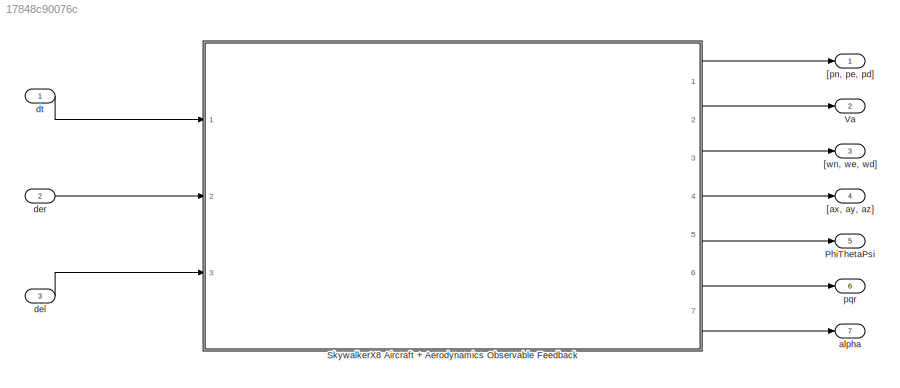
MODEL slx_17848c90076c
KIND model
CONFIG AbsTol = auto
CONFIG EnableMultiTasking = off
CONFIG FixedStep = 0.01
CONFIG MaxStep = auto
CONFIG MinStep = auto
CONFIG RelTol = 1e-3
CONFIG SampleTimeConstraint = Unconstrained
CONFIG Solver = FixedStepAuto
CONFIG SolverName = FixedStepAuto
CONFIG StartTime = 0.0
CONFIG StopTime = 10.0
BLOCK [Outport] PhiThetaPsi
  IconDisplay = Port number
  Port = 5
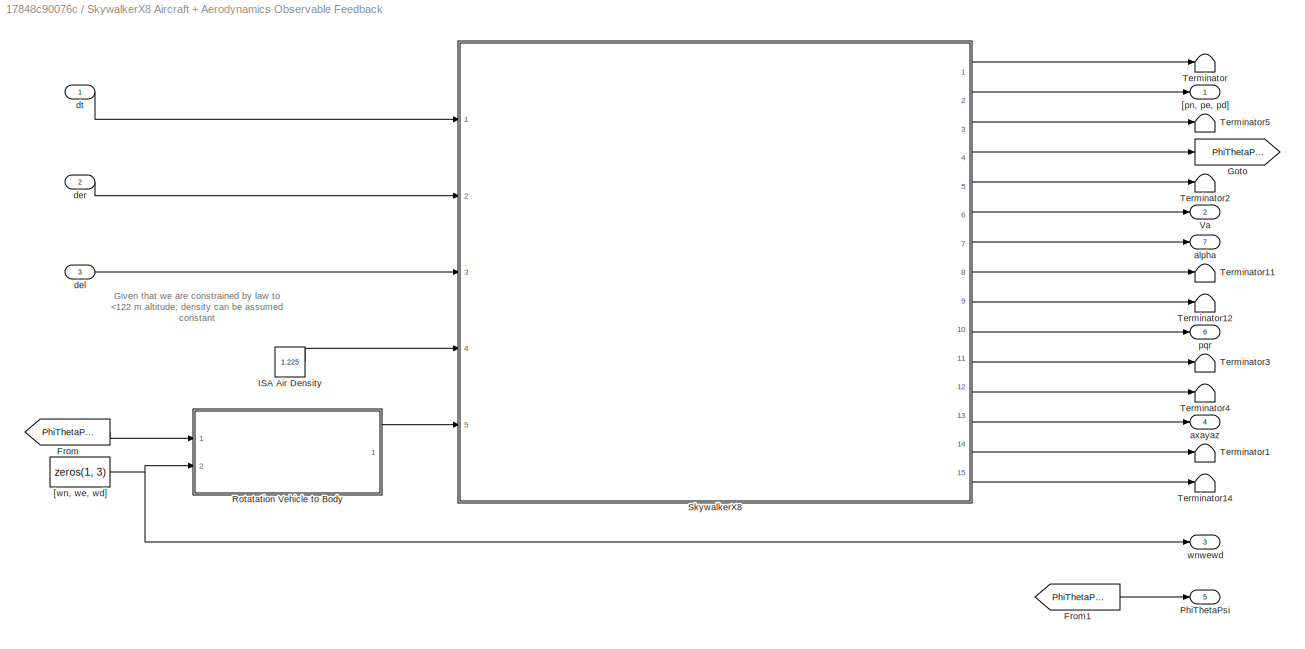
BLOCK [SubSystem] SkywalkerX8 Aircraft + Aerodynamics Observable Feedback
  Ports = [3, 7]
  RequestExecContextInheritance = off
BLOCK [From] SkywalkerX8 Aircraft + Aerodynamics Observable Feedback/From
  GotoTag = PhiThetaPsi
BLOCK [From] SkywalkerX8 Aircraft + Aerodynamics Observable Feedback/From1
  GotoTag = PhiThetaPsi
BLOCK [Goto] SkywalkerX8 Aircraft + Aerodynamics Observable Feedback/Goto
  GotoTag = PhiThetaPsi
BLOCK [Constant] SkywalkerX8 Aircraft + Aerodynamics Observable Feedback/ISA Air Density
  Value = 1.225
BLOCK [Outport] SkywalkerX8 Aircraft + Aerodynamics Observable Feedback/PhiThetaPsi
  IconDisplay = Port number
  Port = 5
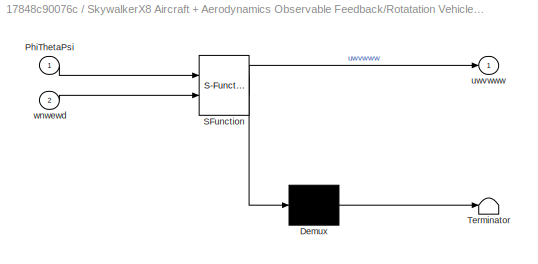
BLOCK [SubSystem] SkywalkerX8 Aircraft + Aerodynamics Observable Feedback/Rotatation Vehicle to Body
  ErrorFcn = Stateflow.Translate.translate
  PermitHierarchicalResolution = ExplicitOnly
  Ports = [2, 1]
  RequestExecContextInheritance = off
  SFBlockType = MATLAB Function
  TreatAsAtomicUnit = on
BLOCK [Demux] SkywalkerX8 Aircraft + Aerodynamics Observable Feedback/Rotatation Vehicle to Body/ Demux 
  Outputs = 1
  Ports = [1, 1]
BLOCK [S-Function] SkywalkerX8 Aircraft + Aerodynamics Observable Feedback/Rotatation Vehicle to Body/ SFunction 
  EnableBusSupport = off
  FunctionName = sf_sfun
  PortCounts = [2 2]
  Ports = [2, 2]
  SFcnIsStateOwnerBlock = off
  SFunctionDeploymentMode = off
  Tag = Stateflow S-Function SkywalkerX8_Observable_Feedback 2
BLOCK [Terminator] SkywalkerX8 Aircraft + Aerodynamics Observable Feedback/Rotatation Vehicle to Body/ Terminator 
BLOCK [Inport] SkywalkerX8 Aircraft + Aerodynamics Observable Feedback/Rotatation Vehicle to Body/PhiThetaPsi
  IconDisplay = Port number
BLOCK [Outport] SkywalkerX8 Aircraft + Aerodynamics Observable Feedback/Rotatation Vehicle to Body/uwvwww
  IconDisplay = Port number
BLOCK [Inport] SkywalkerX8 Aircraft + Aerodynamics Observable Feedback/Rotatation Vehicle to Body/wnwewd
  IconDisplay = Port number
  Port = 2
BLOCK [ModelReference] SkywalkerX8 Aircraft + Aerodynamics Observable Feedback/SkywalkerX8
  ModelNameDialog = SkywalkerX8_AircraftModel
  ModelReferenceVersion = 1.361
  Ports = [5, 15]
BLOCK [Terminator] SkywalkerX8 Aircraft + Aerodynamics Observable Feedback/Terminator
BLOCK [Terminator] SkywalkerX8 Aircraft + Aerodynamics Observable Feedback/Terminator1
BLOCK [Terminator] SkywalkerX8 Aircraft + Aerodynamics Observable Feedback/Terminator11
BLOCK [Terminator] SkywalkerX8 Aircraft + Aerodynamics Observable Feedback/Terminator12
BLOCK [Terminator] SkywalkerX8 Aircraft + Aerodynamics Observable Feedback/Terminator14
BLOCK [Terminator] SkywalkerX8 Aircraft + Aerodynamics Observable Feedback/Terminator2
BLOCK [Terminator] SkywalkerX8 Aircraft + Aerodynamics Observable Feedback/Terminator3
BLOCK [Terminator] SkywalkerX8 Aircraft + Aerodynamics Observable Feedback/Terminator4
BLOCK [Terminator] SkywalkerX8 Aircraft + Aerodynamics Observable Feedback/Terminator5
BLOCK [Outport] SkywalkerX8 Aircraft + Aerodynamics Observable Feedback/Va
  IconDisplay = Port number
  Port = 2
BLOCK [Outport] SkywalkerX8 Aircraft + Aerodynamics Observable Feedback/[pn, pe, pd]
  IconDisplay = Port number
BLOCK [Constant] SkywalkerX8 Aircraft + Aerodynamics Observable Feedback/[wn, we, wd]
  Value = zeros(1, 3)
BLOCK [Outport] SkywalkerX8 Aircraft + Aerodynamics Observable Feedback/alpha
  IconDisplay = Port number
  Port = 7
BLOCK [Outport] SkywalkerX8 Aircraft + Aerodynamics Observable Feedback/axayaz
  IconDisplay = Port number
  Port = 4
BLOCK [Inport] SkywalkerX8 Aircraft + Aerodynamics Observable Feedback/del
  IconDisplay = Port number
  Port = 3
BLOCK [Inport] SkywalkerX8 Aircraft + Aerodynamics Observable Feedback/der
  IconDisplay = Port number
  Port = 2
BLOCK [Inport] SkywalkerX8 Aircraft + Aerodynamics Observable Feedback/dt
  IconDisplay = Port number
BLOCK [Outport] SkywalkerX8 Aircraft + Aerodynamics Observable Feedback/pqr
  IconDisplay = Port number
  Port = 6
BLOCK [Outport] SkywalkerX8 Aircraft + Aerodynamics Observable Feedback/wnwewd
  IconDisplay = Port number
  Port = 3
BLOCK [Outport] Va
  IconDisplay = Port number
  Port = 2
BLOCK [Outport] [ax, ay, az]
  IconDisplay = Port number
  Port = 4
BLOCK [Outport] [pn, pe, pd]
  IconDisplay = Port number
BLOCK [Outport] [wn, we, wd]
  IconDisplay = Port number
  Port = 3
BLOCK [Outport] alpha
  IconDisplay = Port number
  Port = 7
BLOCK [Inport] del
  IconDisplay = Port number
  Port = 3
BLOCK [Inport] der
  IconDisplay = Port number
  Port = 2
BLOCK [Inport] dt
  IconDisplay = Port number
BLOCK [Outport] pqr
  IconDisplay = Port number
  Port = 6
ANNOTATION SkywalkerX8 Aircraft + Aerodynamics Observable Feedback: Given that we are constrained by law to <122 m altitude, density can be assumed constant
LINE SkywalkerX8 Aircraft + Aerodynamics Observable Feedback/From1:1 -> SkywalkerX8 Aircraft + Aerodynamics Observable Feedback/PhiThetaPsi:1
LINE SkywalkerX8 Aircraft + Aerodynamics Observable Feedback/From:1 -> SkywalkerX8 Aircraft + Aerodynamics Observable Feedback/Rotatation Vehicle to Body:1
LINE SkywalkerX8 Aircraft + Aerodynamics Observable Feedback/ISA Air Density:1 -> SkywalkerX8 Aircraft + Aerodynamics Observable Feedback/SkywalkerX8:4
LINE SkywalkerX8 Aircraft + Aerodynamics Observable Feedback/Rotatation Vehicle to Body:1 -> SkywalkerX8 Aircraft + Aerodynamics Observable Feedback/SkywalkerX8:5
LINE SkywalkerX8 Aircraft + Aerodynamics Observable Feedback/SkywalkerX8:1 -> SkywalkerX8 Aircraft + Aerodynamics Observable Feedback/Terminator:1
LINE SkywalkerX8 Aircraft + Aerodynamics Observable Feedback/SkywalkerX8:10 -> SkywalkerX8 Aircraft + Aerodynamics Observable Feedback/pqr:1
LINE SkywalkerX8 Aircraft + Aerodynamics Observable Feedback/SkywalkerX8:11 -> SkywalkerX8 Aircraft + Aerodynamics Observable Feedback/Terminator3:1
LINE SkywalkerX8 Aircraft + Aerodynamics Observable Feedback/SkywalkerX8:12 -> SkywalkerX8 Aircraft + Aerodynamics Observable Feedback/Terminator4:1
LINE SkywalkerX8 Aircraft + Aerodynamics Observable Feedback/SkywalkerX8:13 -> SkywalkerX8 Aircraft + Aerodynamics Observable Feedback/axayaz:1
LINE SkywalkerX8 Aircraft + Aerodynamics Observable Feedback/SkywalkerX8:14 -> SkywalkerX8 Aircraft + Aerodynamics Observable Feedback/Terminator1:1
LINE SkywalkerX8 Aircraft + Aerodynamics Observable Feedback/SkywalkerX8:15 -> SkywalkerX8 Aircraft + Aerodynamics Observable Feedback/Terminator14:1
LINE SkywalkerX8 Aircraft + Aerodynamics Observable Feedback/SkywalkerX8:2 -> SkywalkerX8 Aircraft + Aerodynamics Observable Feedback/[pn, pe, pd]:1
LINE SkywalkerX8 Aircraft + Aerodynamics Observable Feedback/SkywalkerX8:3 -> SkywalkerX8 Aircraft + Aerodynamics Observable Feedback/Terminator5:1
LINE SkywalkerX8 Aircraft + Aerodynamics Observable Feedback/SkywalkerX8:4 -> SkywalkerX8 Aircraft + Aerodynamics Observable Feedback/Goto:1
LINE SkywalkerX8 Aircraft + Aerodynamics Observable Feedback/SkywalkerX8:5 -> SkywalkerX8 Aircraft + Aerodynamics Observable Feedback/Terminator2:1
LINE SkywalkerX8 Aircraft + Aerodynamics Observable Feedback/SkywalkerX8:6 -> SkywalkerX8 Aircraft + Aerodynamics Observable Feedback/Va:1
LINE SkywalkerX8 Aircraft + Aerodynamics Observable Feedback/SkywalkerX8:7 -> SkywalkerX8 Aircraft + Aerodynamics Observable Feedback/alpha:1
LINE SkywalkerX8 Aircraft + Aerodynamics Observable Feedback/SkywalkerX8:8 -> SkywalkerX8 Aircraft + Aerodynamics Observable Feedback/Terminator11:1
LINE SkywalkerX8 Aircraft + Aerodynamics Observable Feedback/SkywalkerX8:9 -> SkywalkerX8 Aircraft + Aerodynamics Observable Feedback/Terminator12:1
NET SkywalkerX8 Aircraft + Aerodynamics Observable Feedback/[wn, we, wd]:1 -> SkywalkerX8 Aircraft + Aerodynamics Observable Feedback/Rotatation Vehicle to Body:2, SkywalkerX8 Aircraft + Aerodynamics Observable Feedback/wnwewd:1
LINE SkywalkerX8 Aircraft + Aerodynamics Observable Feedback/del:1 -> SkywalkerX8 Aircraft + Aerodynamics Observable Feedback/SkywalkerX8:3
LINE SkywalkerX8 Aircraft + Aerodynamics Observable Feedback/der:1 -> SkywalkerX8 Aircraft + Aerodynamics Observable Feedback/SkywalkerX8:2
LINE SkywalkerX8 Aircraft + Aerodynamics Observable Feedback/dt:1 -> SkywalkerX8 Aircraft + Aerodynamics Observable Feedback/SkywalkerX8:1
LINE SkywalkerX8 Aircraft + Aerodynamics Observable Feedback:1 -> [pn, pe, pd]:1
LINE SkywalkerX8 Aircraft + Aerodynamics Observable Feedback:2 -> Va:1
LINE SkywalkerX8 Aircraft + Aerodynamics Observable Feedback:3 -> [wn, we, wd]:1
LINE SkywalkerX8 Aircraft + Aerodynamics Observable Feedback:4 -> [ax, ay, az]:1
LINE SkywalkerX8 Aircraft + Aerodynamics Observable Feedback:5 -> PhiThetaPsi:1
LINE SkywalkerX8 Aircraft + Aerodynamics Observable Feedback:6 -> pqr:1
LINE SkywalkerX8 Aircraft + Aerodynamics Observable Feedback:7 -> alpha:1
LINE del:1 -> SkywalkerX8 Aircraft + Aerodynamics Observable Feedback:3
LINE der:1 -> SkywalkerX8 Aircraft + Aerodynamics Observable Feedback:2
LINE dt:1 -> SkywalkerX8 Aircraft + Aerodynamics Observable Feedback:1
note: NET lines group one-source signal fan-out (src -> all destinations, sorted); 1:1 wires keep LINE
CHART SkywalkerX8 Aircraft + Aerodynamics Observable Feedback/Rotatation Vehicle to Body states=1 transitions=1
  STATE_LABEL 'eML_blk_kernel()'
  STATE_LABEL 'SCRIPT:\nfunction uwvwww = fcn(PhiThetaPsi, wnwewd)\n\n    Phi = PhiThetaPsi(1);\n    Theta = PhiThetaPsi(2);\n    Psi = PhiThetaPsi(3);\n\n    Rvb = [cos(Theta)*cos(Psi)                             , cos(Theta)*sin(Psi)                             , -sin(Theta)        ;\n           sin(Phi)*sin(Theta)*cos(Psi) - cos(Phi)*sin(Psi), sin(Phi)*sin(Theta)*sin(Psi) + cos(Phi)*cos(Psi), sin(Phi)*cos(Theta);\n   ...<+204ch>'
